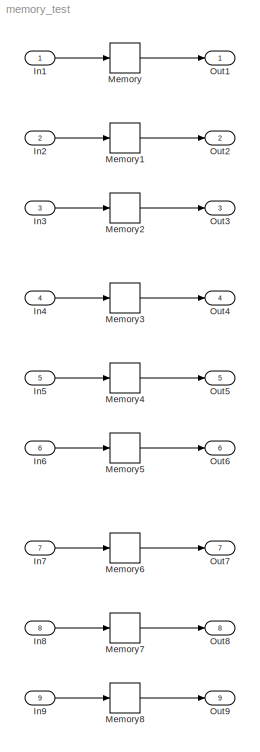
MODEL memory_test
KIND model
BLOCK [Inport] In1
  IconDisplay = Port number
  OutDataTypeStr = double
  PortDimensions = 1
  SID = 1
BLOCK [Inport] In2
  IconDisplay = Port number
  OutDataTypeStr = double
  Port = 2
  PortDimensions = 1
  SID = 2
BLOCK [Inport] In3
  IconDisplay = Port number
  Port = 3
  PortDimensions = 1
  SID = 3
BLOCK [Inport] In4
  IconDisplay = Port number
  OutDataTypeStr = int8
  Port = 4
  PortDimensions = 1
  SID = 4
BLOCK [Inport] In5
  IconDisplay = Port number
  OutDataTypeStr = int8
  Port = 5
  PortDimensions = 1
  SID = 5
BLOCK [Inport] In6
  IconDisplay = Port number
  OutDataTypeStr = int8
  Port = 6
  PortDimensions = 1
  SID = 6
BLOCK [Inport] In7
  IconDisplay = Port number
  OutDataTypeStr = boolean
  Port = 7
  PortDimensions = 1
  SID = 7
BLOCK [Inport] In8
  IconDisplay = Port number
  OutDataTypeStr = boolean
  Port = 8
  PortDimensions = 1
  SID = 8
BLOCK [Inport] In9
  IconDisplay = Port number
  OutDataTypeStr = boolean
  Port = 9
  PortDimensions = 1
  SID = 9
BLOCK [Memory] Memory
  SID = 28
BLOCK [Memory] Memory1
  InitialCondition = 0.0
  SID = 29
BLOCK [Memory] Memory2
  InitialCondition = true
  SID = 30
BLOCK [Memory] Memory3
  SID = 43
BLOCK [Memory] Memory4
  InitialCondition = 0.0
  SID = 44
BLOCK [Memory] Memory5
  InitialCondition = true
  SID = 45
BLOCK [Memory] Memory6
  SID = 46
BLOCK [Memory] Memory7
  InitialCondition = 0.0
  SID = 47
BLOCK [Memory] Memory8
  InitialCondition = true
  SID = 48
BLOCK [Outport] Out1
  IconDisplay = Port number
  SID = 19
BLOCK [Outport] Out2
  IconDisplay = Port number
  Port = 2
  SID = 20
BLOCK [Outport] Out3
  IconDisplay = Port number
  Port = 3
  SID = 21
BLOCK [Outport] Out4
  IconDisplay = Port number
  Port = 4
  SID = 22
BLOCK [Outport] Out5
  IconDisplay = Port number
  Port = 5
  SID = 23
BLOCK [Outport] Out6
  IconDisplay = Port number
  Port = 6
  SID = 24
BLOCK [Outport] Out7
  IconDisplay = Port number
  Port = 7
  SID = 25
BLOCK [Outport] Out8
  IconDisplay = Port number
  Port = 8
  SID = 26
BLOCK [Outport] Out9
  IconDisplay = Port number
  Port = 9
  SID = 27
LINE In1:1 -> Memory:1
LINE In2:1 -> Memory1:1
LINE In3:1 -> Memory2:1
LINE In4:1 -> Memory3:1
LINE In5:1 -> Memory4:1
LINE In6:1 -> Memory5:1
LINE In7:1 -> Memory6:1
LINE In8:1 -> Memory7:1
LINE In9:1 -> Memory8:1
LINE Memory1:1 -> Out2:1
LINE Memory2:1 -> Out3:1
LINE Memory3:1 -> Out4:1
LINE Memory4:1 -> Out5:1
LINE Memory5:1 -> Out6:1
LINE Memory6:1 -> Out7:1
LINE Memory7:1 -> Out8:1
LINE Memory8:1 -> Out9:1
LINE Memory:1 -> Out1:1
